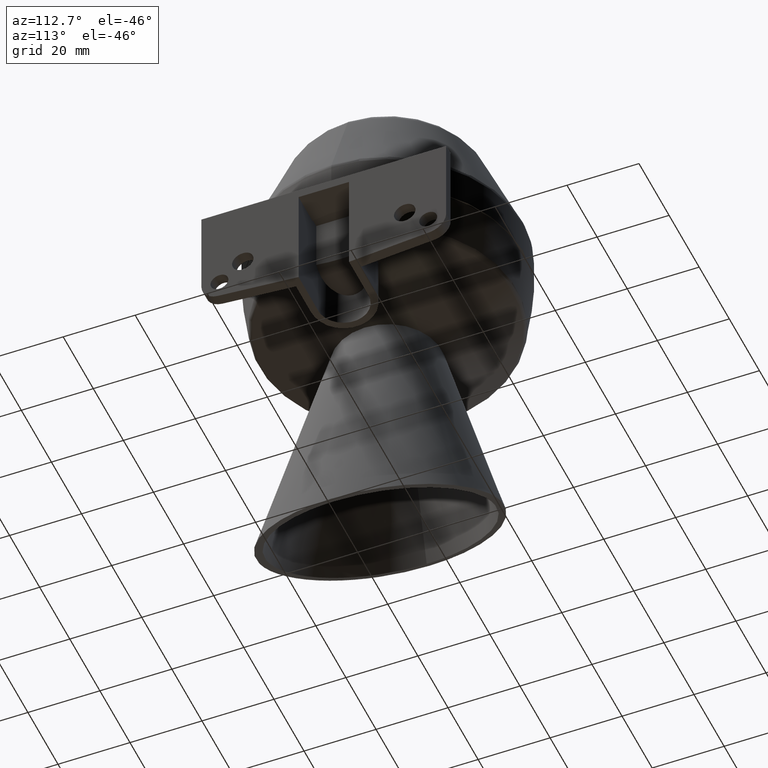
[diagram: clean part render]
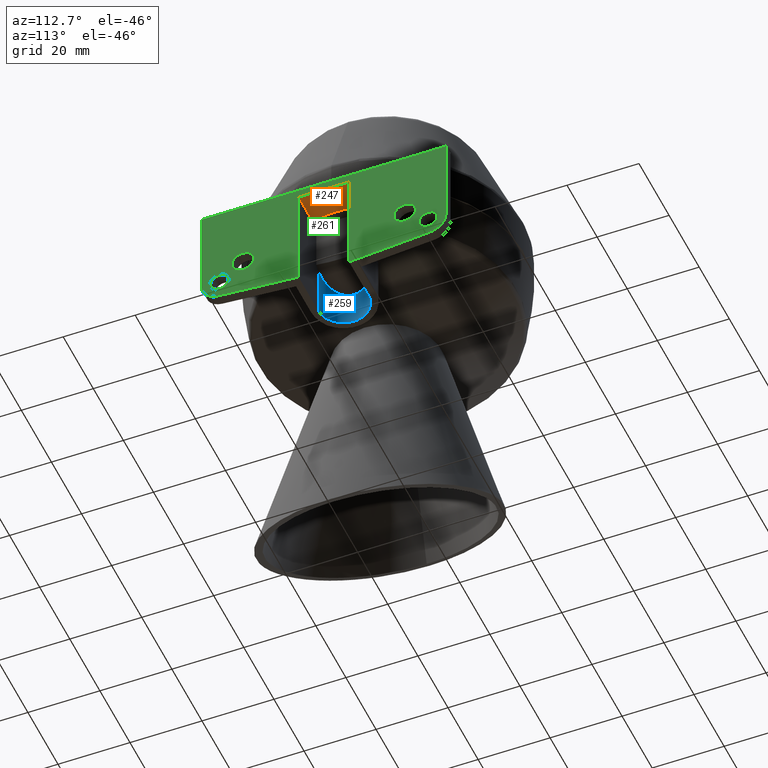
[diagram: same view with three faces highlighted in distinct colors, each labeled with its STEP entity id]
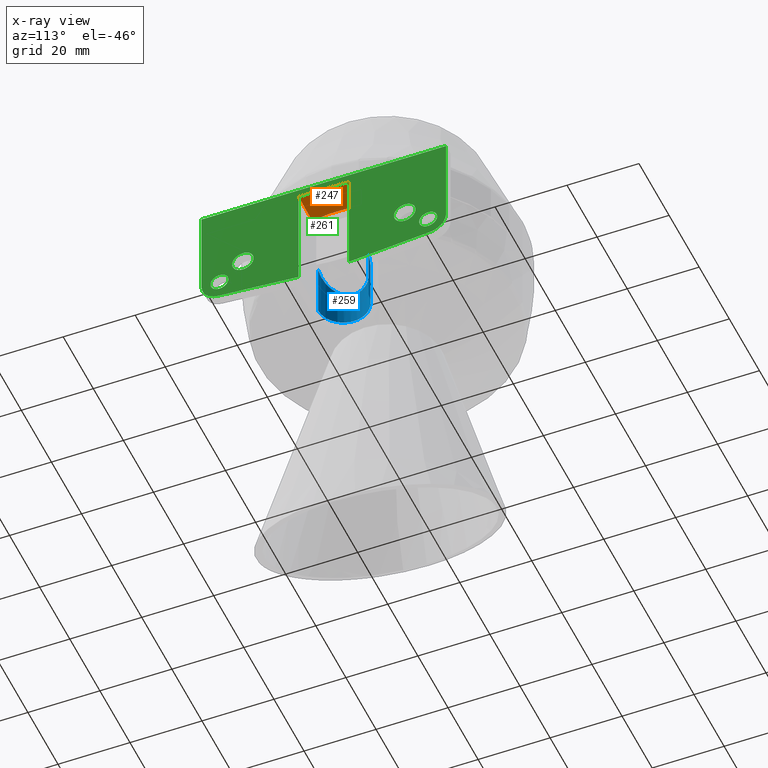
[diagram: x-ray of the same camera — body ghosted, the three highlighted faces saturated]
A machine part, auxiliary view with three faces highlighted in distinct colors.
The next image is the same camera in x-ray (body ghosted, the three faces saturated) — at least one of them is partly hidden behind the body in this view.
Their STEP definitions:

[orange] entity #247 — the highlighted planar face has unit normal (0, 0, -1).
#65=LINE('',#1427,#114);
#66=LINE('',#1429,#115);
#67=LINE('',#1431,#116);
#114=VECTOR('',#1127,1.);
#115=VECTOR('',#1128,1.);
#116=VECTOR('',#1129,1.);
#157=FACE_OUTER_BOUND('',#404,.T.);
#202=PLANE('',#955);
#247=ADVANCED_FACE('',(#157),#202,.T.);
#404=EDGE_LOOP('',(#512,#513,#514,#515));
#512=ORIENTED_EDGE('',*,*,#790,.F.);
#513=ORIENTED_EDGE('',*,*,#791,.F.);
#514=ORIENTED_EDGE('',*,*,#792,.F.);
#515=ORIENTED_EDGE('',*,*,#788,.T.);
#702=VERTEX_POINT('',#1422);
#703=VERTEX_POINT('',#1424);
#704=VERTEX_POINT('',#1428);
#705=VERTEX_POINT('',#1430);
#788=EDGE_CURVE('',#703,#702,#881,.T.);
#790=EDGE_CURVE('',#704,#702,#65,.T.);
#791=EDGE_CURVE('',#705,#704,#66,.T.);
#792=EDGE_CURVE('',#703,#705,#67,.T.);
#881=CIRCLE('',#953,34.);
#953=AXIS2_PLACEMENT_3D('',#1423,#1122,#1123);
#955=AXIS2_PLACEMENT_3D('',#1432,#1130,#1131);
#1122=DIRECTION('',(0.,0.,1.));
#1123=DIRECTION('',(-1.,0.,0.));
#1127=DIRECTION('',(-1.,2.20176441181671E-015,0.));
#1128=DIRECTION('',(0.,1.,0.));
#1129=DIRECTION('',(1.,4.40352882363343E-015,0.));
#1130=DIRECTION('',(0.,0.,-1.));
#1131=DIRECTION('',(-1.,0.,0.));
#1422=CARTESIAN_POINT('',(33.2716095192282,7.00000000000005,24.6));
#1423=CARTESIAN_POINT('',(0.,0.,24.6));
#1424=CARTESIAN_POINT('',(33.2716095192282,-7.00000000000001,24.6));
#1427=CARTESIAN_POINT('',(29.5000000000001,7.00000000000006,24.6));
#1428=CARTESIAN_POINT('',(42.5000000000001,7.00000000000003,24.6));
#1429=CARTESIAN_POINT('',(42.5000000000001,54.5590529598418,24.6));
#1430=CARTESIAN_POINT('',(42.5000000000001,-6.99999999999999,24.6));
#1431=CARTESIAN_POINT('',(42.5000000000001,-6.99999999999997,24.6));
#1432=CARTESIAN_POINT('',(27.4423487844675,54.5590529598418,24.6));

[blue] entity #259 — the highlighted cylindrical surface (edge-blend (fillet) strip) has radius 7 mm, axis along (0, 0, -1).
#34=B_SPLINE_CURVE_WITH_KNOTS('',3,(#1347,#1348,#1349,#1350,#1351,#1352,
#1353,#1354,#1355,#1356,#1357,#1358,#1359,#1360,#1361,#1362,#1363,#1364,
#1365,#1366,#1367,#1368,#1369,#1370,#1371,#1372,#1373,#1374,#1375,#1376,
#1377,#1378,#1379,#1380,#1381,#1382,#1383,#1384,#1385,#1386,#1387),.UNSPECIFIED.,
 .F.,.F.,(4,2,2,2,2,2,2,2,2,2,1,2,2,2,2,2,2,2,2,2,4),(0.,0.125,0.15625,0.1875,
0.25,0.3125,0.375000000000001,0.406250000000001,0.437500000000001,0.468750000000001,
0.500000000000001,0.531250000000001,0.562500000000001,0.593750000000001,
0.625000000000001,0.687500000000001,0.750000000000001,0.8125,0.875,0.9375,
1.),.UNSPECIFIED.);
#49=ELLIPSE('',#980,7.0277905327389,7.);
#50=ELLIPSE('',#981,7.0277905327389,7.);
#80=LINE('',#1487,#129);
#83=LINE('',#1506,#132);
#129=VECTOR('',#1176,1.);
#132=VECTOR('',#1197,1.);
#165=FACE_OUTER_BOUND('',#420,.T.);
#259=ADVANCED_FACE('',(#165),#287,.F.);
#287=CYLINDRICAL_SURFACE('',#982,7.);
#420=EDGE_LOOP('',(#558,#559,#560,#561,#562,#563));
#558=ORIENTED_EDGE('',*,*,#822,.F.);
#559=ORIENTED_EDGE('',*,*,#823,.T.);
#560=ORIENTED_EDGE('',*,*,#824,.F.);
#561=ORIENTED_EDGE('',*,*,#777,.F.);
#562=ORIENTED_EDGE('',*,*,#815,.T.);
#563=ORIENTED_EDGE('',*,*,#825,.T.);
#694=VERTEX_POINT('',#1388);
#695=VERTEX_POINT('',#1389);
#723=VERTEX_POINT('',#1486);
#728=VERTEX_POINT('',#1502);
#729=VERTEX_POINT('',#1503);
#730=VERTEX_POINT('',#1505);
#777=EDGE_CURVE('',#694,#695,#34,.T.);
#815=EDGE_CURVE('',#694,#723,#80,.T.);
#822=EDGE_CURVE('',#728,#729,#894,.T.);
#823=EDGE_CURVE('',#728,#730,#49,.T.);
#824=EDGE_CURVE('',#695,#730,#83,.T.);
#825=EDGE_CURVE('',#723,#729,#50,.T.);
#894=CIRCLE('',#979,7.);
#979=AXIS2_PLACEMENT_3D('',#1501,#1193,#1194);
#980=AXIS2_PLACEMENT_3D('',#1504,#1195,#1196);
#981=AXIS2_PLACEMENT_3D('',#1507,#1198,#1199);
#982=AXIS2_PLACEMENT_3D('',#1508,#1200,#1201);
#1176=DIRECTION('',(0.,0.,-1.));
#1193=DIRECTION('',(4.9150498486009E-015,0.,1.));
#1194=DIRECTION('',(-1.,0.,4.95635278850516E-015));
#1195=DIRECTION('',(0.,0.0888432144821003,-0.996045623071799));
#1196=DIRECTION('',(0.,-0.996045623071799,-0.0888432144821003));
#1197=DIRECTION('',(0.,0.,-1.));
#1198=DIRECTION('',(0.,-0.0888432144821003,-0.996045623071799));
#1199=DIRECTION('',(0.,0.996045623071799,-0.0888432144821003));
#1200=DIRECTION('',(0.,0.,-1.));
#1201=DIRECTION('',(-1.,0.,0.));
#1347=CARTESIAN_POINT('',(29.5000000000001,-7.00000000000003,9.94270837819627));
#1348=CARTESIAN_POINT('',(28.6290577903097,-7.00000000000003,9.39270549121811));
#1349=CARTESIAN_POINT('',(27.793055635741,-6.84281522623599,8.8417344194446));
#1350=CARTESIAN_POINT('',(26.7907073135754,-6.45800622053577,8.15066875270969));
#1351=CARTESIAN_POINT('',(26.5914927904008,-6.37083561875089,8.01171112072593));
#1352=CARTESIAN_POINT('',(26.2029868331531,-6.17872679822254,7.73755621846988));
#1353=CARTESIAN_POINT('',(26.0137433436338,-6.07394956890372,7.60241291689021));
#1354=CARTESIAN_POINT('',(25.4608366014891,-5.73345920005557,7.20305401623823));
#1355=CARTESIAN_POINT('',(25.111857195908,-5.47189927843794,6.94478690929429));
#1356=CARTESIAN_POINT('',(24.4551209074084,-4.87305591221831,6.44812296989541));
#1357=CARTESIAN_POINT('',(24.1449607160911,-4.53181574690308,6.2077276538062));
#1358=CARTESIAN_POINT('',(23.5953915671938,-3.78806005117652,5.77345517497832));
#1359=CARTESIAN_POINT('',(23.3530865004323,-3.38425159595695,5.577456491354));
#1360=CARTESIAN_POINT('',(23.0457372605484,-2.72064672442132,5.3252661618151));
#1361=CARTESIAN_POINT('',(22.9538458440661,-2.49174555567529,5.24916451487213));
#1362=CARTESIAN_POINT('',(22.7945914279676,-2.02445697153406,5.11650703275028));
#1363=CARTESIAN_POINT('',(22.7267644742979,-1.7851056696975,5.05957144642851));
#1364=CARTESIAN_POINT('',(22.6160703273199,-1.29415377765267,4.96630202425455));
#1365=CARTESIAN_POINT('',(22.5730131532752,-1.04037019046204,4.92980852476454));
#1366=CARTESIAN_POINT('',(22.5155293182431,-0.531682427374817,4.88101769855628));
#1367=CARTESIAN_POINT('',(22.4861846127407,-0.0226996987674069,4.85601761371482));
#1368=CARTESIAN_POINT('',(22.5122471648335,0.486865705359284,4.87822481528508));
#1369=CARTESIAN_POINT('',(22.5665836701564,0.996727594426536,4.92435725587882));
#1370=CARTESIAN_POINT('',(22.6080187101523,1.25064664462905,4.95949098686866));
#1371=CARTESIAN_POINT('',(22.7158084889764,1.74306301408974,5.05036257947638));
#1372=CARTESIAN_POINT('',(22.7823423815276,1.98356884154738,5.10625093736454));
#1373=CARTESIAN_POINT('',(22.9395097579438,2.45386165299965,5.23726721201888));
#1374=CARTESIAN_POINT('',(23.0307955650821,2.68489255422044,5.31292662750296));
#1375=CARTESIAN_POINT('',(23.3339953283958,3.34923910517573,5.56193250638143));
#1376=CARTESIAN_POINT('',(23.5750037889805,3.75669185294366,5.75712608047639));
#1377=CARTESIAN_POINT('',(24.1268496351244,4.51082796557418,6.19362001705307));
#1378=CARTESIAN_POINT('',(24.4317238873441,4.84874868085317,6.43013789595132));
#1379=CARTESIAN_POINT('',(25.0861107078605,5.45118040803368,6.92558563379725));
#1380=CARTESIAN_POINT('',(25.4378522008691,5.71764604157083,7.18623559957965));
#1381=CARTESIAN_POINT('',(26.1836263657998,6.18014457088638,7.72532409561856));
#1382=CARTESIAN_POINT('',(26.570320836735,6.37188836351636,7.99849740604442));
#1383=CARTESIAN_POINT('',(27.3702025693455,6.68191171904881,8.55041488910736));
#1384=CARTESIAN_POINT('',(27.7854317126163,6.80048582792325,8.83051154301358));
#1385=CARTESIAN_POINT('',(28.6340079784435,6.95962712553534,9.39006004896487));
#1386=CARTESIAN_POINT('',(29.0641157753372,6.99999999999997,9.66744604817551));
#1387=CARTESIAN_POINT('',(29.5000000000001,6.99999999999997,9.94270837819625));
#1388=CARTESIAN_POINT('',(29.5000000000001,-7.00000000000003,9.94270837819626));
#1389=CARTESIAN_POINT('',(29.5,7.00000000000006,9.94270837819625));
#1486=CARTESIAN_POINT('',(29.5000000000001,-7.00000000000003,-4.88607966947829));
#1487=CARTESIAN_POINT('',(29.5000000000001,-7.00000000000003,403.015905959418));
#1501=CARTESIAN_POINT('',(29.5000000000001,-2.8421709430404E-014,-4.8999999999999));
#1502=CARTESIAN_POINT('',(28.0301194645047,6.84393535996442,-4.8999999999999));
#1503=CARTESIAN_POINT('',(28.0301194645046,-6.84393535996447,-4.8999999999999));
#1504=CARTESIAN_POINT('',(29.5000000000001,-2.8421709430404E-014,-5.51045117111371));
#1505=CARTESIAN_POINT('',(29.5000000000001,6.99999999999997,-4.88607966947829));
#1506=CARTESIAN_POINT('',(29.5000000000001,6.99999999999997,403.015905959418));
#1507=CARTESIAN_POINT('',(29.5000000000001,-2.8421709430404E-014,-5.51045117111371));
#1508=CARTESIAN_POINT('',(29.5000000000001,-2.8421709430404E-014,403.015905959418));

[green] entity #261 — the highlighted planar face has unit normal (1, 0, 0).
#55=LINE('',#1293,#104);
#66=LINE('',#1429,#115);
#70=LINE('',#1437,#119);
#77=LINE('',#1476,#126);
#78=LINE('',#1483,#127);
#85=LINE('',#1511,#134);
#86=LINE('',#1513,#135);
#87=LINE('',#1514,#136);
#104=VECTOR('',#1039,1.);
#115=VECTOR('',#1128,1.);
#119=VECTOR('',#1134,1.);
#126=VECTOR('',#1165,1.);
#127=VECTOR('',#1174,1.);
#134=VECTOR('',#1203,1.);
#135=VECTOR('',#1206,1.);
#136=VECTOR('',#1207,1.);
#209=PLANE('',#984);
#261=ADVANCED_FACE('',(#341,#342,#343,#344,#345),#209,.T.);
#341=FACE_BOUND('',#422,.T.);
#342=FACE_BOUND('',#423,.T.);
#343=FACE_BOUND('',#424,.T.);
#344=FACE_BOUND('',#425,.T.);
#345=FACE_BOUND('',#426,.T.);
#422=EDGE_LOOP('',(#572));
#423=EDGE_LOOP('',(#573));
#424=EDGE_LOOP('',(#574));
#425=EDGE_LOOP('',(#575,#576,#577,#578,#579,#580,#581,#582,#583,#584));
#426=EDGE_LOOP('',(#585));
#572=ORIENTED_EDGE('',*,*,#811,.F.);
#573=ORIENTED_EDGE('',*,*,#799,.F.);
#574=ORIENTED_EDGE('',*,*,#797,.F.);
#575=ORIENTED_EDGE('',*,*,#819,.F.);
#576=ORIENTED_EDGE('',*,*,#795,.T.);
#577=ORIENTED_EDGE('',*,*,#758,.T.);
#578=ORIENTED_EDGE('',*,*,#810,.F.);
#579=ORIENTED_EDGE('',*,*,#816,.F.);
#580=ORIENTED_EDGE('',*,*,#828,.F.);
#581=ORIENTED_EDGE('',*,*,#813,.T.);
#582=ORIENTED_EDGE('',*,*,#791,.T.);
#583=ORIENTED_EDGE('',*,*,#827,.T.);
#584=ORIENTED_EDGE('',*,*,#829,.F.);
#585=ORIENTED_EDGE('',*,*,#806,.T.);
#675=VERTEX_POINT('',#1292);
#676=VERTEX_POINT('',#1294);
#704=VERTEX_POINT('',#1428);
#705=VERTEX_POINT('',#1430);
#708=VERTEX_POINT('',#1438);
#709=VERTEX_POINT('',#1442);
#711=VERTEX_POINT('',#1447);
#716=VERTEX_POINT('',#1468);
#719=VERTEX_POINT('',#1475);
#720=VERTEX_POINT('',#1479);
#722=VERTEX_POINT('',#1484);
#724=VERTEX_POINT('',#1490);
#726=VERTEX_POINT('',#1496);
#731=VERTEX_POINT('',#1510);
#758=EDGE_CURVE('',#676,#675,#55,.T.);
#791=EDGE_CURVE('',#705,#704,#66,.T.);
#795=EDGE_CURVE('',#708,#676,#70,.T.);
#797=EDGE_CURVE('',#709,#709,#882,.T.);
#799=EDGE_CURVE('',#711,#711,#884,.T.);
#806=EDGE_CURVE('',#716,#716,#886,.T.);
#810=EDGE_CURVE('',#719,#675,#77,.T.);
#811=EDGE_CURVE('',#720,#720,#888,.T.);
#813=EDGE_CURVE('',#722,#705,#78,.T.);
#816=EDGE_CURVE('',#724,#719,#890,.T.);
#819=EDGE_CURVE('',#708,#726,#892,.T.);
#827=EDGE_CURVE('',#704,#731,#85,.T.);
#828=EDGE_CURVE('',#722,#724,#86,.T.);
#829=EDGE_CURVE('',#726,#731,#87,.T.);
#882=CIRCLE('',#957,2.5);
#884=CIRCLE('',#960,3.);
#886=CIRCLE('',#965,2.5);
#888=CIRCLE('',#969,3.);
#890=CIRCLE('',#973,4.99999999999999);
#892=CIRCLE('',#976,4.99999999999999);
#957=AXIS2_PLACEMENT_3D('',#1441,#1138,#1139);
#960=AXIS2_PLACEMENT_3D('',#1446,#1144,#1145);
#965=AXIS2_PLACEMENT_3D('',#1467,#1157,#1158);
#969=AXIS2_PLACEMENT_3D('',#1478,#1168,#1169);
#973=AXIS2_PLACEMENT_3D('',#1489,#1179,#1180);
#976=AXIS2_PLACEMENT_3D('',#1495,#1186,#1187);
#984=AXIS2_PLACEMENT_3D('',#1515,#1208,#1209);
#1039=DIRECTION('',(0.,-1.,0.));
#1128=DIRECTION('',(0.,1.,0.));
#1134=DIRECTION('',(0.,0.,1.));
#1138=DIRECTION('',(1.,0.,0.));
#1139=DIRECTION('',(0.,0.,-1.));
#1144=DIRECTION('',(1.,0.,0.));
#1145=DIRECTION('',(0.,0.,-1.));
#1157=DIRECTION('',(-1.,0.,0.));
#1158=DIRECTION('',(0.,0.,-1.));
#1165=DIRECTION('',(0.,0.,1.));
#1168=DIRECTION('',(1.,0.,0.));
#1169=DIRECTION('',(0.,0.,-1.));
#1174=DIRECTION('',(0.,0.,1.));
#1179=DIRECTION('',(-1.,0.,0.));
#1180=DIRECTION('',(0.,0.,-1.));
#1186=DIRECTION('',(-1.,0.,0.));
#1187=DIRECTION('',(0.,0.,-1.));
#1203=DIRECTION('',(0.,0.,-1.));
#1206=DIRECTION('',(0.,-0.996045623071799,0.0888432144821003));
#1207=DIRECTION('',(0.,-0.996045623071799,-0.0888432144821003));
#1208=DIRECTION('',(1.,0.,0.));
#1209=DIRECTION('',(0.,0.,-1.));
#1292=CARTESIAN_POINT('',(42.5000000000001,-34.,27.0960811447607));
#1293=CARTESIAN_POINT('',(42.5000000000001,54.5590529598418,27.0960811447607));
#1294=CARTESIAN_POINT('',(42.5000000000001,34.,27.0960811447607));
#1428=CARTESIAN_POINT('',(42.5000000000001,7.00000000000003,24.6));
#1429=CARTESIAN_POINT('',(42.5000000000001,54.5590529598418,24.6));
#1430=CARTESIAN_POINT('',(42.5000000000001,-6.99999999999999,24.6));
#1437=CARTESIAN_POINT('',(42.5000000000001,34.,-4.89999999999998));
#1438=CARTESIAN_POINT('',(42.5000000000001,33.9999999999999,2.09608114476068));
#1441=CARTESIAN_POINT('',(42.5000000000001,29.,2.09608114476067));
#1442=CARTESIAN_POINT('',(42.5000000000001,29.,-0.403918855239326));
#1446=CARTESIAN_POINT('',(42.5000000000001,22.5,7.0960811447607));
#1447=CARTESIAN_POINT('',(42.5000000000001,22.5,4.0960811447607));
#1467=CARTESIAN_POINT('',(42.5000000000001,-29.,2.09608114476067));
#1468=CARTESIAN_POINT('',(42.5000000000001,-29.,-0.403918855239326));
#1475=CARTESIAN_POINT('',(42.5000000000001,-34.,2.09608114476067));
#1476=CARTESIAN_POINT('',(42.5000000000001,-34.,-4.89999999999998));
#1478=CARTESIAN_POINT('',(42.5000000000001,-22.5,7.0960811447607));
#1479=CARTESIAN_POINT('',(42.5000000000001,-22.5,4.0960811447607));
#1483=CARTESIAN_POINT('',(42.5000000000001,-6.99999999999999,-4.89999999999998));
#1484=CARTESIAN_POINT('',(42.5000000000001,-6.99999999999997,-4.88607966947829));
#1489=CARTESIAN_POINT('',(42.5000000000001,-29.,2.09608114476067));
#1490=CARTESIAN_POINT('',(42.5000000000001,-29.4442160724105,-2.88414697059828));
#1495=CARTESIAN_POINT('',(42.5000000000001,28.9999999999999,2.09608114476067));
#1496=CARTESIAN_POINT('',(42.5000000000001,29.4442160724104,-2.88414697059831));
#1510=CARTESIAN_POINT('',(42.5000000000001,7.00000000000003,-4.8860796694783));
#1511=CARTESIAN_POINT('',(42.5000000000001,7.00000000000003,-4.89999999999998));
#1513=CARTESIAN_POINT('',(42.5000000000001,54.0743920036506,-10.333666790448));
#1514=CARTESIAN_POINT('',(42.5000000000001,54.1824319654321,-0.677598827040205));
#1515=CARTESIAN_POINT('',(42.5000000000001,54.5590529598418,-4.89999999999998));